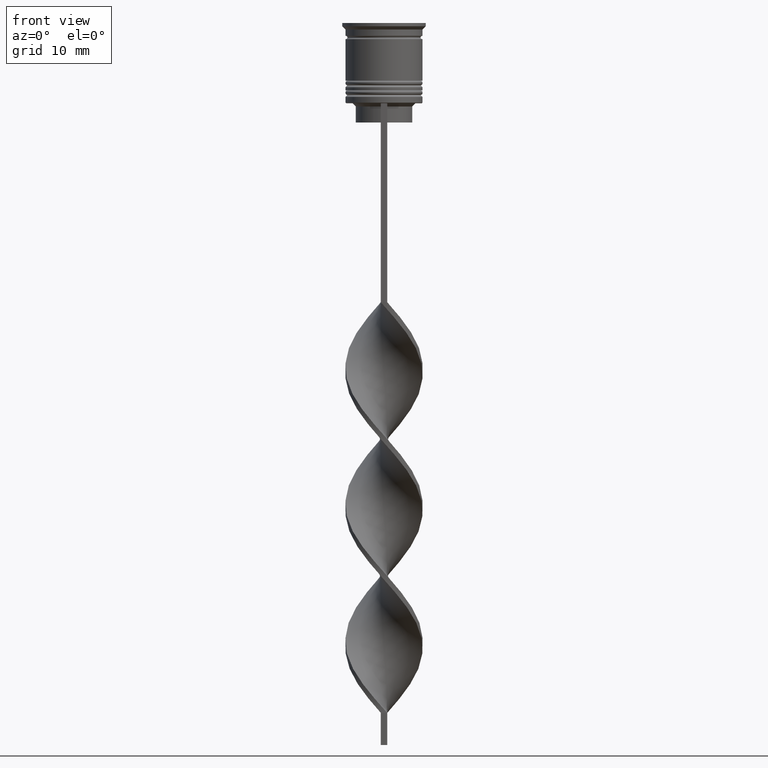
[diagram: clean part render]
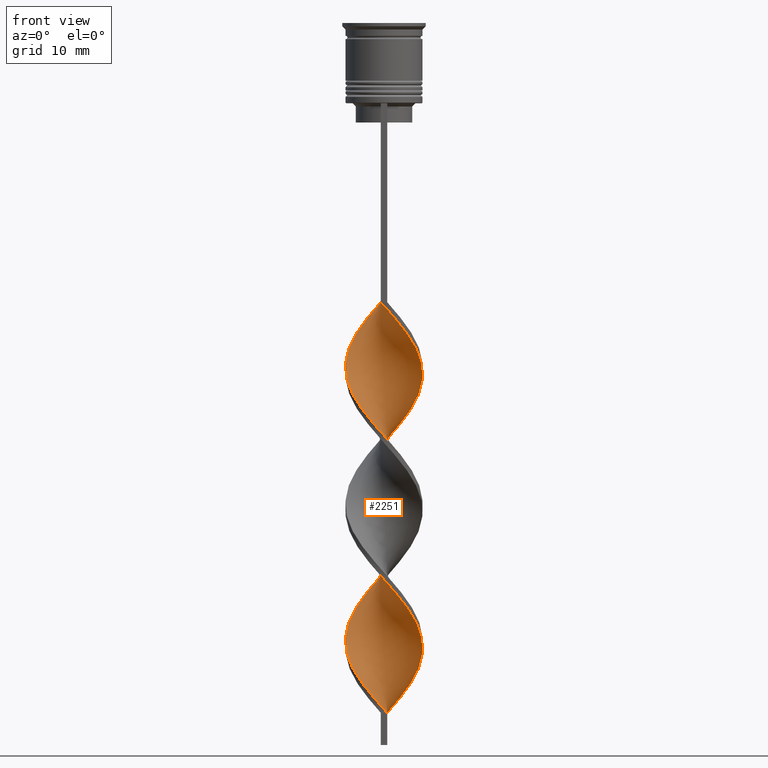
[diagram: same view with one face highlighted and labeled with its STEP entity id]
A machine part, front view. The second image highlights one B-rep face of the part: STEP entity #2251.
In plain terms, the highlighted face is a freeform B-spline surface patch.
Its self-contained STEP definition (entity closure, byte-faithful):
#6 = CARTESIAN_POINT ( 'NONE',  ( 0.2285318993335668514, 6.060710991611130360, -85.34615384615385381 ) ) ;
#7 = CARTESIAN_POINT ( 'NONE',  ( 4.190053366537511259, 4.384962638200768481, -80.42307692307691980 ) ) ;
#47 = CARTESIAN_POINT ( 'NONE',  ( 0.5000000000000005551, 6.000000000000000000, -64.83333333333332860 ) ) ;
#55 = CARTESIAN_POINT ( 'NONE',  ( -5.117688277455211932, 3.254798188466756947, -72.21794871794871540 ) ) ;
#59 = LINE ( 'NONE', #3367, #1224 ) ;
#67 = CARTESIAN_POINT ( 'NONE',  ( 0.5000000000000005551, 6.000000000000000000, -107.5000000000000000 ) ) ;
#73 = CARTESIAN_POINT ( 'NONE',  ( -3.018907784180934417, 5.260288998093236579, -68.93589743589743080 ) ) ;
#110 = CARTESIAN_POINT ( 'NONE',  ( 5.988975108237873712, 0.9574036273986640255, -98.47435897435896379 ) ) ;
#126 = CARTESIAN_POINT ( 'NONE',  ( 2.345611019436006028, -5.545097739941144077, -89.44871794871794179 ) ) ;
#144 = CARTESIAN_POINT ( 'NONE',  ( 4.352991323530322809, 4.159503159906207337, -102.5769230769230660 ) ) ;
#157 = CARTESIAN_POINT ( 'NONE',  ( 5.117688277455213708, -3.254798188466753839, -93.55128205128204399 ) ) ;
#176 = CARTESIAN_POINT ( 'NONE',  ( 3.847936200635250881, 4.688051999358552990, -103.3974358974358836 ) ) ;
#184 = ORIENTED_EDGE ( 'NONE', *, *, #2936, .F. ) ;
#201 = CARTESIAN_POINT ( 'NONE',  ( 5.747901747727229171, -1.935476698729089451, -95.19230769230769340 ) ) ;
#218 = CARTESIAN_POINT ( 'NONE',  ( -5.988975108237873712, 0.9574036273986648027, -52.52564102564103621 ) ) ;
#220 = CARTESIAN_POINT ( 'NONE',  ( -6.044068061194097119, -0.5036723384328409825, -54.16666666666666430 ) ) ;
#221 = CARTESIAN_POINT ( 'NONE',  ( 5.747901747727230060, 1.935476698729086786, -77.14102564102563520 ) ) ;
#236 = CARTESIAN_POINT ( 'NONE',  ( 0.5000000000000005551, 6.000000000000000000, -107.5000000000000000 ) ) ;
#238 = CARTESIAN_POINT ( 'NONE',  ( -4.858046446425393405, 3.630954320453865680, -49.24358974358974450 ) ) ;
#240 = CARTESIAN_POINT ( 'NONE',  ( -5.747901747727229171, -1.935476698729088563, -98.47435897435896379 ) ) ;
#255 = CARTESIAN_POINT ( 'NONE',  ( 3.847936200635250437, 4.688051999358552990, -103.3974358974358694 ) ) ;
#257 = CARTESIAN_POINT ( 'NONE',  ( 3.847936200635249548, -4.688051999358554767, -68.93589743589743080 ) ) ;
#258 = CARTESIAN_POINT ( 'NONE',  ( -3.018907784180935749, -5.260288998093234802, -103.3974358974358694 ) ) ;
#273 = CARTESIAN_POINT ( 'NONE',  ( -5.787399899633756561, 1.660121200912507922, -51.70512820512820440 ) ) ;
#274 = CARTESIAN_POINT ( 'NONE',  ( -0.2285318993335660742, -6.060710991611130360, -64.01282051282051100 ) ) ;
#278 = CARTESIAN_POINT ( 'NONE',  ( 5.432795012591220107, -2.595137443597922200, -51.70512820512820440 ) ) ;
#293 = CARTESIAN_POINT ( 'NONE',  ( -5.988975108237873712, 0.9574036273986648027, -95.19230769230769340 ) ) ;
#294 = CARTESIAN_POINT ( 'NONE',  ( 4.653870821996362039, 3.819880413333761826, -79.60256410256410220 ) ) ;
#297 = CARTESIAN_POINT ( 'NONE',  ( 0.2285318993335633819, -6.060710991611129472, -44.32051282051282470 ) ) ;
#307 = EDGE_CURVE ( 'NONE', #2082, #2021, #59, .T. ) ;
#315 = CARTESIAN_POINT ( 'NONE',  ( 3.231067045089216716, 5.080374567897374405, -61.55128205128204399 ) ) ;
#323 = CARTESIAN_POINT ( 'NONE',  ( -5.221935568727517740, -2.996896547440105252, -79.60256410256410220 ) ) ;
#333 =( BOUNDED_CURVE ( )  B_SPLINE_CURVE ( 2, ( #2363, #3474, #966, #2089, #3192, #1086, #790, #238, #2994, #1349, #2500, #3596, #2527, #220, #833, #1070, #3052, #3260, #3580, #3311, #2157, #2464, #2482, #1328, #2723, #274, #1053, #2799, #1389, #488, #3027, #257, #1684, #2739, #1958, #1032, #1644, #1936, #1370, #2208, #2192, #806, #2762, #1606, #544, #2440, #1665, #758, #776, #2780, #2230, #6, #3338, #1878, #3558, #3295, #2177, #1624, #1914, #1107, #3074, #3279, #562, #293, #1415, #523, #1897, #3011, #505, #661, #3359, #1133, #3420, #2564, #2274, #2895, #2000, #640, #895 ),
 .UNSPECIFIED., .F., .T. ) 
 B_SPLINE_CURVE_WITH_KNOTS ( ( 3, 2, 2, 2, 2, 2, 2, 2, 2, 2, 2, 2, 2, 2, 2, 2, 2, 2, 2, 2, 2, 2, 2, 2, 2, 2, 2, 2, 2, 2, 2, 2, 2, 2, 2, 2, 2, 2, 2, 3 ),
 ( 0.000000000000000000, 0.01923076923076923184, 0.03846153846153846367, 0.05769230769230768857, 0.07692307692307692735, 0.09615384615384615918, 0.1153846153846153771, 0.1346153846153846090, 0.1538461538461538547, 0.1730769230769230449, 0.1923076923076923184, 0.2115384615384615363, 0.2307692307692307543, 0.2500000000000000000, 0.2692307692307692180, 0.2884615384615384359, 0.3076923076923077094, 0.3269230769230769273, 0.3461538461538460898, 0.3653846153846153633, 0.3846153846153846367, 0.4038461538461539102, 0.4230769230769230727, 0.4423076923076922906, 0.4615384615384615086, 0.4807692307692307820, 0.5000000000000000000, 0.5192307692307692735, 0.5384615384615384359, 0.5576923076923077094, 0.5769230769230768718, 0.5961538461538461453, 0.6153846153846154188, 0.6346153846153845812, 0.6538461538461538547, 0.6730769230769230171, 0.6923076923076921796, 0.7115384615384615641, 0.7307692307692307265, 0.7500000000000000000 ),
 .UNSPECIFIED. ) 
 CURVE ( )  GEOMETRIC_REPRESENTATION_ITEM ( )  RATIONAL_B_SPLINE_CURVE ( ( 1.000000000000000000, 0.9927088740980539727, 1.000000000000000000, 0.9927088740980539727, 1.000000000000000000, 0.9927088740980539727, 1.000000000000000000, 0.9927088740980539727, 1.000000000000000000, 0.9927088740980539727, 1.000000000000000000, 0.9927088740980539727, 1.000000000000000000, 0.9927088740980539727, 1.000000000000000000, 0.9927088740980539727, 1.000000000000000000, 0.9927088740980539727, 1.000000000000000000, 0.9927088740980539727, 1.000000000000000000, 0.9927088740980539727, 1.000000000000000000, 0.9927088740980539727, 1.000000000000000000, 0.9927088740980539727, 1.000000000000000000, 0.9927088740980539727, 1.000000000000000000, 0.9927088740980539727, 1.000000000000000000, 0.9927088740980539727, 1.000000000000000000, 0.9927088740980539727, 1.000000000000000000, 0.9927088740980539727, 1.000000000000000000, 0.9927088740980539727, 1.000000000000000000, 0.9927088740980539727, 1.000000000000000000, 0.9927088740980539727, 1.000000000000000000, 0.9927088740980539727, 1.000000000000000000, 0.9927088740980539727, 1.000000000000000000, 0.9927088740980539727, 1.000000000000000000, 0.9927088740980539727, 1.000000000000000000, 0.9927088740980539727, 1.000000000000000000, 0.9927088740980539727, 1.000000000000000000, 0.9927088740980539727, 1.000000000000000000, 0.9927088740980539727, 1.000000000000000000, 0.9927088740980539727, 1.000000000000000000, 0.9927088740980539727, 1.000000000000000000, 0.9927088740980539727, 1.000000000000000000, 0.9927088740980539727, 1.000000000000000000, 0.9927088740980539727, 1.000000000000000000, 0.9927088740980539727, 1.000000000000000000, 0.9927088740980539727, 1.000000000000000000, 0.9927088740980539727, 1.000000000000000000, 0.9927088740980539727, 1.000000000000000000, 0.9927088740980539727, 1.000000000000000000 ) ) 
 REPRESENTATION_ITEM ( '' )  );
#334 = CARTESIAN_POINT ( 'NONE',  ( 0.2285318993335633819, -6.060710991611130360, -44.32051282051282470 ) ) ;
#340 = CARTESIAN_POINT ( 'NONE',  ( 6.016521584715985860, 0.2268656444829105501, -54.98717948717948190 ) ) ;
#398 = CARTESIAN_POINT ( 'NONE',  ( -1.921364894438377657, -5.705993072412531397, -84.52564102564103621 ) ) ;
#414 = CARTESIAN_POINT ( 'NONE',  ( -5.787399899633756561, -1.660121200912506367, -77.96153846153845279 ) ) ;
#426 = CARTESIAN_POINT ( 'NONE',  ( -0.4999999999999997780, -6.000000000000000000, -43.50000000000000000 ) ) ;
#431 = CARTESIAN_POINT ( 'NONE',  ( -1.228531899333566768, -5.939289008388869640, -85.34615384615385381 ) ) ;
#444 = CARTESIAN_POINT ( 'NONE',  ( 3.018907784180934417, -5.260288998093235691, -90.26923076923077360 ) ) ;
#466 = CARTESIAN_POINT ( 'NONE',  ( -4.858046446425393405, 3.630954320453865680, -49.24358974358973740 ) ) ;
#486 = CARTESIAN_POINT ( 'NONE',  ( -4.352991323530321033, 4.159503159906209113, -48.42307692307691269 ) ) ;
#488 = CARTESIAN_POINT ( 'NONE',  ( 2.614197889543179887, -5.472697136436198484, -67.29487179487178139 ) ) ;
#503 = CARTESIAN_POINT ( 'NONE',  ( 1.921364894438370330, -5.705993072412534062, -66.47435897435896379 ) ) ;
#505 = CARTESIAN_POINT ( 'NONE',  ( -5.432795012591221884, -2.595137443597919980, -99.29487179487178139 ) ) ;
#506 = CARTESIAN_POINT ( 'NONE',  ( -4.653870821996361151, -3.819880413333762714, -100.9358974358974308 ) ) ;
#514 = ORIENTED_EDGE ( 'NONE', *, *, #3180, .F. ) ;
#522 = CARTESIAN_POINT ( 'NONE',  ( -1.921364894438377657, -5.705993072412531397, -84.52564102564103621 ) ) ;
#523 = CARTESIAN_POINT ( 'NONE',  ( -6.044068061194097119, -0.5036723384328409825, -96.83333333333332860 ) ) ;
#525 = CARTESIAN_POINT ( 'NONE',  ( 4.858046446425391629, -3.630954320453867012, -70.57692307692306599 ) ) ;
#543 = CARTESIAN_POINT ( 'NONE',  ( -5.221935568727515964, 2.996896547440107916, -50.06410256410256210 ) ) ;
#544 = CARTESIAN_POINT ( 'NONE',  ( 4.653870821996362039, 3.819880413333761826, -79.60256410256410220 ) ) ;
#545 = CARTESIAN_POINT ( 'NONE',  ( -0.9504230770123229810, -5.945308736700090968, -105.8589743589743506 ) ) ;
#547 = CARTESIAN_POINT ( 'NONE',  ( -0.4999999999999997780, -6.000000000000000000, -43.50000000000000000 ) ) ;
#562 = CARTESIAN_POINT ( 'NONE',  ( -5.787399899633756561, 1.660121200912507922, -94.37179487179486159 ) ) ;
#563 = CARTESIAN_POINT ( 'NONE',  ( 0.9504230770123263117, 5.945308736700090968, -84.52564102564103621 ) ) ;
#577 = CARTESIAN_POINT ( 'NONE',  ( 1.921364894438374549, 5.705993072412533174, -63.19230769230768630 ) ) ;
#587 = CARTESIAN_POINT ( 'NONE',  ( 2.614197889543183884, 5.472697136436196708, -62.37179487179486870 ) ) ;
#613 = CARTESIAN_POINT ( 'NONE',  ( 4.352991323530322809, 4.159503159906207337, -59.91025641025640880 ) ) ;
#629 = CARTESIAN_POINT ( 'NONE',  ( -5.747901747727229171, 1.935476698729089007, -73.85897435897436480 ) ) ;
#632 = CARTESIAN_POINT ( 'NONE',  ( 0.4999999999999990563, -6.000000000000000000, -107.5000000000000000 ) ) ;
#640 = CARTESIAN_POINT ( 'NONE',  ( -0.2285318993335660742, -6.060710991611130360, -106.6794871794871824 ) ) ;
#645 = ORIENTED_EDGE ( 'NONE', *, *, #307, .T. ) ;
#654 = CARTESIAN_POINT ( 'NONE',  ( 5.221935568727516852, 2.996896547440106140, -100.9358974358974308 ) ) ;
#661 = CARTESIAN_POINT ( 'NONE',  ( -5.117688277455213708, -3.254798188466752951, -100.1153846153846132 ) ) ;
#670 = CARTESIAN_POINT ( 'NONE',  ( 4.190053366537506818, -4.384962638200773810, -91.91025641025643722 ) ) ;
#683 = CARTESIAN_POINT ( 'NONE',  ( 4.858046446425394294, 3.630954320453863016, -101.7564102564102484 ) ) ;
#698 = CARTESIAN_POINT ( 'NONE',  ( -5.221935568727517740, -2.996896547440105252, -79.60256410256410220 ) ) ;
#716 = CARTESIAN_POINT ( 'NONE',  ( -0.9504230770123187622, 5.945308736700090968, -66.47435897435896379 ) ) ;
#738 = CARTESIAN_POINT ( 'NONE',  ( -2.614197889543184328, -5.472697136436196708, -83.70512820512820440 ) ) ;
#754 = CARTESIAN_POINT ( 'NONE',  ( 2.614197889543183884, 5.472697136436196708, -105.0384615384615330 ) ) ;
#758 = CARTESIAN_POINT ( 'NONE',  ( 3.018907784180935749, 5.260288998093234802, -82.06410256410255499 ) ) ;
#774 = CARTESIAN_POINT ( 'NONE',  ( 1.228531899333561661, -5.939289008388869640, -65.65384615384614619 ) ) ;
#776 = CARTESIAN_POINT ( 'NONE',  ( 2.345611019436010469, 5.545097739941142301, -82.88461538461537259 ) ) ;
#777 = CARTESIAN_POINT ( 'NONE',  ( -3.847936200635249993, 4.688051999358553878, -90.26923076923075939 ) ) ;
#789 = CARTESIAN_POINT ( 'NONE',  ( 2.345611019436006028, -5.545097739941144077, -89.44871794871794179 ) ) ;
#790 = CARTESIAN_POINT ( 'NONE',  ( -4.352991323530321033, 4.159503159906209113, -48.42307692307691269 ) ) ;
#791 = CARTESIAN_POINT ( 'NONE',  ( 5.585824691029638522, -2.362838774426352373, -72.21794871794871540 ) ) ;
#805 = CARTESIAN_POINT ( 'NONE',  ( -2.614197889543182107, 5.472697136436197596, -45.96153846153845279 ) ) ;
#806 = CARTESIAN_POINT ( 'NONE',  ( 5.747901747727230060, 1.935476698729086786, -77.14102564102563520 ) ) ;
#808 = CARTESIAN_POINT ( 'NONE',  ( -6.044068061194097119, -0.5036723384328408715, -96.83333333333332860 ) ) ;
#833 = CARTESIAN_POINT ( 'NONE',  ( -5.895984904460662257, -1.219574518580964106, -54.98717948717948190 ) ) ;
#834 = CARTESIAN_POINT ( 'NONE',  ( 0.4999999999999990563, -6.000000000000000000, -107.5000000000000000 ) ) ;
#848 = CARTESIAN_POINT ( 'NONE',  ( 4.858046446425394294, 3.630954320453863016, -59.08974358974358410 ) ) ;
#856 = CARTESIAN_POINT ( 'NONE',  ( -4.653870821996360263, 3.819880413333763158, -71.39743589743588359 ) ) ;
#876 = CARTESIAN_POINT ( 'NONE',  ( 3.231067045089216716, 5.080374567897374405, -61.55128205128204399 ) ) ;
#890 = CARTESIAN_POINT ( 'NONE',  ( 5.117688277455213708, -3.254798188466753839, -50.88461538461537970 ) ) ;
#895 = CARTESIAN_POINT ( 'NONE',  ( 0.4999999999999990563, -6.000000000000000000, -107.5000000000000000 ) ) ;
#898 = CARTESIAN_POINT ( 'NONE',  ( -0.9504230770123187622, 5.945308736700090968, -66.47435897435896379 ) ) ;
#907 = CARTESIAN_POINT ( 'NONE',  ( 5.895984904460662257, -1.219574518580966105, -53.34615384615383959 ) ) ;
#937 = CARTESIAN_POINT ( 'NONE',  ( 6.044068061194097119, -0.5036723384328415376, -96.83333333333332860 ) ) ;
#956 = CARTESIAN_POINT ( 'NONE',  ( 6.016521584715985860, 0.2268656444829105501, -97.65384615384614619 ) ) ;
#966 = CARTESIAN_POINT ( 'NONE',  ( -1.921364894438372328, 5.705993072412534062, -45.14102564102563520 ) ) ;
#970 = CARTESIAN_POINT ( 'NONE',  ( -5.117688277455211932, 3.254798188466756503, -72.21794871794871540 ) ) ;
#988 = CARTESIAN_POINT ( 'NONE',  ( -2.614197889543184328, -5.472697136436196708, -83.70512820512820440 ) ) ;
#1013 = CARTESIAN_POINT ( 'NONE',  ( 4.190053366537506818, -4.384962638200772922, -91.91025641025643722 ) ) ;
#1015 = CARTESIAN_POINT ( 'NONE',  ( 0.4999999999999990563, -6.000000000000000000, -107.5000000000000000 ) ) ;
#1030 = CARTESIAN_POINT ( 'NONE',  ( -6.016521584715985860, 0.2268656444829126040, -53.34615384615383959 ) ) ;
#1032 = CARTESIAN_POINT ( 'NONE',  ( 5.585824691029637634, -2.362838774426352373, -72.21794871794871540 ) ) ;
#1033 = CARTESIAN_POINT ( 'NONE',  ( 1.672314254691080748, 5.829906481789052464, -83.70512820512820440 ) ) ;
#1049 = CARTESIAN_POINT ( 'NONE',  ( -0.9504230770123229810, -5.945308736700090968, -63.19230769230768630 ) ) ;
#1053 = CARTESIAN_POINT ( 'NONE',  ( 0.4999999999999990563, -6.000000000000000000, -64.83333333333332860 ) ) ;
#1054 = CARTESIAN_POINT ( 'NONE',  ( -2.345611019436007361, -5.545097739941143189, -104.2179487179487012 ) ) ;
#1068 = CARTESIAN_POINT ( 'NONE',  ( 1.921364894438374549, 5.705993072412533174, -105.8589743589743506 ) ) ;
#1070 = CARTESIAN_POINT ( 'NONE',  ( -5.747901747727229171, -1.935476698729088785, -55.80769230769230660 ) ) ;
#1071 = CARTESIAN_POINT ( 'NONE',  ( 5.117688277455216372, 3.254798188466750730, -78.78205128205127039 ) ) ;
#1085 = CARTESIAN_POINT ( 'NONE',  ( -1.672314254691080304, -5.829906481789052464, -62.37179487179486870 ) ) ;
#1086 = CARTESIAN_POINT ( 'NONE',  ( -3.847936200635249993, 4.688051999358553878, -47.60256410256409509 ) ) ;
#1087 = CARTESIAN_POINT ( 'NONE',  ( 2.345611019436010469, 5.545097739941142301, -82.88461538461537259 ) ) ;
#1107 = CARTESIAN_POINT ( 'NONE',  ( -4.858046446425393405, 3.630954320453865680, -91.91025641025643722 ) ) ;
#1112 = CARTESIAN_POINT ( 'NONE',  ( 3.604480575359220396, -4.822625818147004750, -48.42307692307691269 ) ) ;
#1133 = CARTESIAN_POINT ( 'NONE',  ( -4.190053366537507706, -4.384962638200771146, -101.7564102564102484 ) ) ;
#1136 = CARTESIAN_POINT ( 'NONE',  ( -6.016521584715984972, -0.2268656444829071639, -76.32051282051281760 ) ) ;
#1147 = CARTESIAN_POINT ( 'NONE',  ( -0.2285318993335620774, 6.060710991611130360, -65.65384615384614619 ) ) ;
#1155 = CARTESIAN_POINT ( 'NONE',  ( -4.858046446425396070, -3.630954320453860351, -80.42307692307691980 ) ) ;
#1171 = CARTESIAN_POINT ( 'NONE',  ( 4.858046446425394294, 3.630954320453863016, -59.08974358974359120 ) ) ;
#1201 = CARTESIAN_POINT ( 'NONE',  ( 6.044068061194097119, -0.5036723384328415376, -54.16666666666666430 ) ) ;
#1224 = VECTOR ( 'NONE', #3604, 1000.000000000000000 ) ;
#1232 = CARTESIAN_POINT ( 'NONE',  ( 5.787399899633756561, 1.660121200912505479, -99.29487179487178139 ) ) ;
#1263 = CARTESIAN_POINT ( 'NONE',  ( 0.2285318993335633819, -6.060710991611130360, -86.98717948717948900 ) ) ;
#1283 = CARTESIAN_POINT ( 'NONE',  ( 1.921364894438374549, 5.705993072412533174, -105.8589743589743506 ) ) ;
#1309 = CARTESIAN_POINT ( 'NONE',  ( 5.221935568727516852, 2.996896547440106140, -100.9358974358974308 ) ) ;
#1326 = CARTESIAN_POINT ( 'NONE',  ( -3.018907784180935749, -5.260288998093234802, -60.73076923076922640 ) ) ;
#1328 = CARTESIAN_POINT ( 'NONE',  ( -1.672314254691080082, -5.829906481789052464, -62.37179487179486870 ) ) ;
#1329 = CARTESIAN_POINT ( 'NONE',  ( -2.614197889543182107, 5.472697136436197596, -88.62820512820513841 ) ) ;
#1346 = CARTESIAN_POINT ( 'NONE',  ( 5.787399899633756561, 1.660121200912505479, -99.29487179487178139 ) ) ;
#1349 = CARTESIAN_POINT ( 'NONE',  ( -5.585824691029639411, 2.362838774426349264, -50.88461538461537970 ) ) ;
#1350 = CARTESIAN_POINT ( 'NONE',  ( -5.117688277455213708, -3.254798188466752951, -100.1153846153846274 ) ) ;
#1368 = CARTESIAN_POINT ( 'NONE',  ( -4.653870821996361151, -3.819880413333762714, -58.26923076923076650 ) ) ;
#1370 = CARTESIAN_POINT ( 'NONE',  ( 6.016521584715985860, -0.2268656444829146579, -74.67948717948718240 ) ) ;
#1373 = FACE_OUTER_BOUND ( 'NONE', #2733, .T. ) ;
#1387 = CARTESIAN_POINT ( 'NONE',  ( -5.747901747727229171, -1.935476698729088563, -55.80769230769230660 ) ) ;
#1389 = CARTESIAN_POINT ( 'NONE',  ( 1.921364894438370330, -5.705993072412534062, -66.47435897435896379 ) ) ;
#1390 = CARTESIAN_POINT ( 'NONE',  ( -5.895984904460662257, -1.219574518580964106, -97.65384615384614619 ) ) ;
#1393 = CARTESIAN_POINT ( 'NONE',  ( 5.895984904460662257, -1.219574518580966105, -53.34615384615383959 ) ) ;
#1409 = CARTESIAN_POINT ( 'NONE',  ( 5.988975108237873712, 0.9574036273986640255, -55.80769230769230660 ) ) ;
#1415 = CARTESIAN_POINT ( 'NONE',  ( -6.016521584715985860, 0.2268656444829126040, -96.01282051282051100 ) ) ;
#1420 = CARTESIAN_POINT ( 'NONE',  ( 0.9504230770123207606, -5.945308736700090968, -45.14102564102563520 ) ) ;
#1444 = CARTESIAN_POINT ( 'NONE',  ( 1.921364894438374549, 5.705993072412533174, -63.19230769230768630 ) ) ;
#1462 = CARTESIAN_POINT ( 'NONE',  ( 5.221935568727516852, 2.996896547440106140, -58.26923076923076650 ) ) ;
#1488 = CARTESIAN_POINT ( 'NONE',  ( 5.747901747727229171, -1.935476698729089451, -52.52564102564102910 ) ) ;
#1496 = VERTEX_POINT ( 'NONE', #67 ) ;
#1516 = CARTESIAN_POINT ( 'NONE',  ( -3.231067045089219825, -5.080374567897373517, -82.88461538461537259 ) ) ;
#1531 = CARTESIAN_POINT ( 'NONE',  ( 4.653870821996360263, -3.819880413333763158, -92.73076923076922640 ) ) ;
#1548 = CARTESIAN_POINT ( 'NONE',  ( -5.988975108237874601, -0.9574036273986618051, -77.14102564102563520 ) ) ;
#1561 = CARTESIAN_POINT ( 'NONE',  ( 3.604480575359220396, -4.822625818147004750, -91.08974358974359120 ) ) ;
#1586 = CARTESIAN_POINT ( 'NONE',  ( -3.231067045089219825, -5.080374567897373517, -82.88461538461537259 ) ) ;
#1604 = CARTESIAN_POINT ( 'NONE',  ( 5.117688277455213708, -3.254798188466753839, -93.55128205128204399 ) ) ;
#1606 = CARTESIAN_POINT ( 'NONE',  ( 5.117688277455216372, 3.254798188466750286, -78.78205128205127039 ) ) ;
#1622 = CARTESIAN_POINT ( 'NONE',  ( 5.585824691029640299, 2.362838774426348376, -100.1153846153846274 ) ) ;
#1624 = CARTESIAN_POINT ( 'NONE',  ( -3.847936200635249993, 4.688051999358553878, -90.26923076923077360 ) ) ;
#1627 = CARTESIAN_POINT ( 'NONE',  ( 5.117688277455213708, -3.254798188466753839, -50.88461538461538680 ) ) ;
#1642 = CARTESIAN_POINT ( 'NONE',  ( 5.432795012591220107, -2.595137443597922200, -94.37179487179486159 ) ) ;
#1644 = CARTESIAN_POINT ( 'NONE',  ( 5.787399899633756561, -1.660121200912508366, -73.03846153846153300 ) ) ;
#1663 = CARTESIAN_POINT ( 'NONE',  ( -5.585824691029640299, 2.362838774426349264, -50.88461538461538680 ) ) ;
#1665 = CARTESIAN_POINT ( 'NONE',  ( 3.604480575359223060, 4.822625818147002086, -81.24358974358973740 ) ) ;
#1668 = CARTESIAN_POINT ( 'NONE',  ( 4.653870821996360263, -3.819880413333763158, -50.06410256410256210 ) ) ;
#1684 = CARTESIAN_POINT ( 'NONE',  ( 4.352991323530320145, -4.159503159906210001, -69.75641025641024839 ) ) ;
#1685 = CARTESIAN_POINT ( 'NONE',  ( 3.018907784180936194, 5.260288998093234802, -82.06410256410255499 ) ) ;
#1697 = CARTESIAN_POINT ( 'NONE',  ( 4.653870821996360263, -3.819880413333763158, -50.06410256410256210 ) ) ;
#1708 = CARTESIAN_POINT ( 'NONE',  ( -6.044068061194097119, 0.5036723384328423148, -75.49999999999998579 ) ) ;
#1728 = CARTESIAN_POINT ( 'NONE',  ( 5.787399899633756561, 1.660121200912505479, -56.62820512820513130 ) ) ;
#1730 = CARTESIAN_POINT ( 'NONE',  ( 0.4999999999999995559, -2.000000000000000000, -107.5000000000000000 ) ) ;
#1744 = CARTESIAN_POINT ( 'NONE',  ( -5.895984904460662257, 1.219574518580968325, -74.67948717948718240 ) ) ;
#1791 = CARTESIAN_POINT ( 'NONE',  ( -3.018907784180933973, 5.260288998093236579, -68.93589743589743080 ) ) ;
#1807 = CARTESIAN_POINT ( 'NONE',  ( -1.672314254691075641, 5.829906481789053352, -67.29487179487178139 ) ) ;
#1823 = CARTESIAN_POINT ( 'NONE',  ( -4.190053366537505042, 4.384962638200774698, -70.57692307692306599 ) ) ;
#1838 = CARTESIAN_POINT ( 'NONE',  ( -5.585824691029640299, -2.362838774426345712, -78.78205128205127039 ) ) ;
#1858 = CARTESIAN_POINT ( 'NONE',  ( 6.016521584715985860, 0.2268656444829105501, -97.65384615384614619 ) ) ;
#1876 = CARTESIAN_POINT ( 'NONE',  ( -5.117688277455213708, -3.254798188466752951, -57.44871794871794890 ) ) ;
#1878 = CARTESIAN_POINT ( 'NONE',  ( -1.228531899333562993, 5.939289008388869640, -86.98717948717948900 ) ) ;
#1895 = CARTESIAN_POINT ( 'NONE',  ( 2.614197889543179887, -5.472697136436198484, -67.29487179487178139 ) ) ;
#1897 = CARTESIAN_POINT ( 'NONE',  ( -5.895984904460662257, -1.219574518580964106, -97.65384615384614619 ) ) ;
#1899 = CARTESIAN_POINT ( 'NONE',  ( -6.016521584715985860, 0.2268656444829126040, -96.01282051282051100 ) ) ;
#1901 = CARTESIAN_POINT ( 'NONE',  ( 4.190053366537506818, -4.384962638200772922, -49.24358974358973740 ) ) ;
#1913 = CARTESIAN_POINT ( 'NONE',  ( -3.847936200635249993, 4.688051999358553878, -47.60256410256408799 ) ) ;
#1914 = CARTESIAN_POINT ( 'NONE',  ( -4.352991323530321033, 4.159503159906209113, -91.08974358974359120 ) ) ;
#1915 = CARTESIAN_POINT ( 'NONE',  ( 3.604480575359223060, 4.822625818147002086, -81.24358974358973740 ) ) ;
#1934 = CARTESIAN_POINT ( 'NONE',  ( -1.228531899333566990, -5.939289008388869640, -85.34615384615383959 ) ) ;
#1936 = CARTESIAN_POINT ( 'NONE',  ( 5.988975108237873712, -0.9574036273986642476, -73.85897435897436480 ) ) ;
#1958 = CARTESIAN_POINT ( 'NONE',  ( 5.221935568727515964, -2.996896547440107916, -71.39743589743588359 ) ) ;
#1959 = CARTESIAN_POINT ( 'NONE',  ( -3.231067045089215384, 5.080374567897375293, -89.44871794871794179 ) ) ;
#1973 = CARTESIAN_POINT ( 'NONE',  ( 3.847936200635250881, 4.688051999358552990, -60.73076923076922640 ) ) ;
#1981 = CARTESIAN_POINT ( 'NONE',  ( -5.787399899633756561, -1.660121200912506367, -77.96153846153845279 ) ) ;
#2000 = CARTESIAN_POINT ( 'NONE',  ( -0.9504230770123229810, -5.945308736700090968, -105.8589743589743506 ) ) ;
#2006 = CARTESIAN_POINT ( 'NONE',  ( -1.672314254691075641, 5.829906481789053352, -67.29487179487178139 ) ) ;
#2018 = CARTESIAN_POINT ( 'NONE',  ( -0.4999999999999997780, -6.000000000000000000, -43.50000000000000000 ) ) ;
#2021 = VERTEX_POINT ( 'NONE', #2347 ) ;
#2026 = CARTESIAN_POINT ( 'NONE',  ( -5.432795012591220107, 2.595137443597922644, -73.03846153846153300 ) ) ;
#2035 = CARTESIAN_POINT ( 'NONE',  ( 6.016521584715985860, 0.2268656444829105501, -54.98717948717948190 ) ) ;
#2049 = CARTESIAN_POINT ( 'NONE',  ( 3.231067045089216716, 5.080374567897374405, -104.2179487179487012 ) ) ;
#2082 = VERTEX_POINT ( 'NONE', #426 ) ;
#2089 = CARTESIAN_POINT ( 'NONE',  ( -2.614197889543182107, 5.472697136436197596, -45.96153846153845990 ) ) ;
#2094 = CARTESIAN_POINT ( 'NONE',  ( 5.585824691029639411, 2.362838774426348376, -100.1153846153846132 ) ) ;
#2113 = CARTESIAN_POINT ( 'NONE',  ( -4.653870821996360263, 3.819880413333763158, -71.39743589743588359 ) ) ;
#2139 = CARTESIAN_POINT ( 'NONE',  ( 3.231067045089216716, 5.080374567897374405, -104.2179487179487012 ) ) ;
#2155 = CARTESIAN_POINT ( 'NONE',  ( -1.921364894438372328, 5.705993072412534062, -45.14102564102563520 ) ) ;
#2157 = CARTESIAN_POINT ( 'NONE',  ( -3.604480575359222172, -4.822625818147002974, -59.91025641025640880 ) ) ;
#2158 = CARTESIAN_POINT ( 'NONE',  ( -5.221935568727515964, 2.996896547440107916, -92.73076923076922640 ) ) ;
#2174 = CARTESIAN_POINT ( 'NONE',  ( -3.847936200635250881, -4.688051999358552990, -82.06410256410255499 ) ) ;
#2177 = CARTESIAN_POINT ( 'NONE',  ( -3.231067045089215384, 5.080374567897375293, -89.44871794871794179 ) ) ;
#2179 = CARTESIAN_POINT ( 'NONE',  ( 5.432795012591221884, 2.595137443597920868, -77.96153846153845279 ) ) ;
#2181 = CARTESIAN_POINT ( 'NONE',  ( 3.018907784180934861, -5.260288998093235691, -47.60256410256408799 ) ) ;
#2191 = CARTESIAN_POINT ( 'NONE',  ( 0.2285318993335633819, -6.060710991611129472, -86.98717948717948900 ) ) ;
#2192 = CARTESIAN_POINT ( 'NONE',  ( 5.895984904460663145, 1.219574518580960998, -76.32051282051281760 ) ) ;
#2193 = CARTESIAN_POINT ( 'NONE',  ( 5.988975108237873712, -0.9574036273986643586, -73.85897435897436480 ) ) ;
#2207 = CARTESIAN_POINT ( 'NONE',  ( 1.228531899333566102, 5.939289008388869640, -106.6794871794871682 ) ) ;
#2208 = CARTESIAN_POINT ( 'NONE',  ( 6.044068061194097119, 0.5036723384328402053, -75.50000000000000000 ) ) ;
#2209 = CARTESIAN_POINT ( 'NONE',  ( -4.858046446425393405, 3.630954320453865680, -91.91025641025643722 ) ) ;
#2230 = CARTESIAN_POINT ( 'NONE',  ( 0.9504230770123263117, 5.945308736700090968, -84.52564102564103621 ) ) ;
#2231 = CARTESIAN_POINT ( 'NONE',  ( 4.352991323530320145, -4.159503159906210001, -69.75641025641024839 ) ) ;
#2234 = CARTESIAN_POINT ( 'NONE',  ( 5.747901747727229171, -1.935476698729089451, -52.52564102564103621 ) ) ;
#2249 = CARTESIAN_POINT ( 'NONE',  ( 5.221935568727516852, 2.996896547440106140, -58.26923076923076650 ) ) ;
#2251 = ADVANCED_FACE ( 'NONE', ( #1373 ), #2260, .T. ) ;
#2256 = CARTESIAN_POINT ( 'NONE',  ( -5.988975108237873712, -0.9574036273986618051, -77.14102564102563520 ) ) ;
#2260 =( BOUNDED_SURFACE ( )  B_SPLINE_SURFACE ( 1, 2, ( 
 ( #547, #297, #1420, #3014, #3562, #2181, #1112, #1901, #1668, #1627, #278, #2234, #1393, #3363, #340, #2295, #1728, #3097, #1462, #1171, #613, #3407, #876, #587, #1444, #3120, #2568, #2846, #898, #2006, #3134, #73, #3383, #2549, #856, #55, #2026, #629, #1744, #1708, #1136, #2256, #1981, #2828, #323, #1155, #2277, #2174, #1586, #738, #522, #1934, #3009, #2191, #2481, #3293, #789, #2498, #2702, #1013, #2760, #1604, #1642, #201, #2421, #2778, #1858, #3050, #1346, #1622, #1309, #2737, #3538, #255, #2139, #754, #1068, #2207, #236 ),
 ( #2970, #2721, #2155, #805, #3595, #1913, #486, #466, #543, #1663, #273, #218, #1030, #3238, #3026, #1387, #3257, #1876, #1368, #3556, #2992, #1326, #2438, #1085, #1049, #3310, #3277, #774, #503, #1895, #2460, #3577, #2231, #525, #2483, #791, #2764, #2193, #3054, #3075, #3597, #221, #2179, #1071, #294, #7, #1915, #1685, #1087, #1033, #563, #2800, #3340, #3312, #2740, #1329, #1959, #777, #2724, #2209, #2158, #2781, #3261, #3280, #1899, #808, #1390, #240, #2995, #1350, #506, #3296, #2466, #258, #1054, #3581, #545, #3028, #834 ) ),
 .UNSPECIFIED., .F., .F., .F. ) 
 B_SPLINE_SURFACE_WITH_KNOTS ( ( 2, 2 ),
 ( 3, 2, 2, 2, 2, 2, 2, 2, 2, 2, 2, 2, 2, 2, 2, 2, 2, 2, 2, 2, 2, 2, 2, 2, 2, 2, 2, 2, 2, 2, 2, 2, 2, 2, 2, 2, 2, 2, 2, 3 ),
 ( 0.000000000000000000, 1.000000000000000000 ),
 ( 0.000000000000000000, 0.01923076923076923184, 0.03846153846153846367, 0.05769230769230769551, 0.07692307692307692735, 0.09615384615384615918, 0.1153846153846153910, 0.1346153846153846090, 0.1538461538461538547, 0.1730769230769230727, 0.1923076923076923184, 0.2115384615384615363, 0.2307692307692307820, 0.2500000000000000000, 0.2692307692307692180, 0.2884615384615384359, 0.3076923076923077094, 0.3269230769230769273, 0.3461538461538461453, 0.3653846153846153633, 0.3846153846153846367, 0.4038461538461538547, 0.4230769230769230727, 0.4423076923076922906, 0.4615384615384615641, 0.4807692307692307820, 0.5000000000000000000, 0.5192307692307692735, 0.5384615384615384359, 0.5576923076923077094, 0.5769230769230768718, 0.5961538461538461453, 0.6153846153846154188, 0.6346153846153845812, 0.6538461538461538547, 0.6730769230769231282, 0.6923076923076922906, 0.7115384615384615641, 0.7307692307692307265, 0.7500000000000000000 ),
 .UNSPECIFIED. ) 
 GEOMETRIC_REPRESENTATION_ITEM ( )  RATIONAL_B_SPLINE_SURFACE ( (
 ( 1.000000000000000000, 0.9927088740980539727, 1.000000000000000000, 0.9927088740980539727, 1.000000000000000000, 0.9927088740980539727, 1.000000000000000000, 0.9927088740980539727, 1.000000000000000000, 0.9927088740980539727, 1.000000000000000000, 0.9927088740980539727, 1.000000000000000000, 0.9927088740980539727, 1.000000000000000000, 0.9927088740980539727, 1.000000000000000000, 0.9927088740980539727, 1.000000000000000000, 0.9927088740980539727, 1.000000000000000000, 0.9927088740980539727, 1.000000000000000000, 0.9927088740980539727, 1.000000000000000000, 0.9927088740980539727, 1.000000000000000000, 0.9927088740980539727, 1.000000000000000000, 0.9927088740980539727, 1.000000000000000000, 0.9927088740980539727, 1.000000000000000000, 0.9927088740980539727, 1.000000000000000000, 0.9927088740980539727, 1.000000000000000000, 0.9927088740980539727, 1.000000000000000000, 0.9927088740980539727, 1.000000000000000000, 0.9927088740980539727, 1.000000000000000000, 0.9927088740980539727, 1.000000000000000000, 0.9927088740980539727, 1.000000000000000000, 0.9927088740980539727, 1.000000000000000000, 0.9927088740980539727, 1.000000000000000000, 0.9927088740980539727, 1.000000000000000000, 0.9927088740980539727, 1.000000000000000000, 0.9927088740980539727, 1.000000000000000000, 0.9927088740980539727, 1.000000000000000000, 0.9927088740980539727, 1.000000000000000000, 0.9927088740980539727, 1.000000000000000000, 0.9927088740980539727, 1.000000000000000000, 0.9927088740980539727, 1.000000000000000000, 0.9927088740980539727, 1.000000000000000000, 0.9927088740980539727, 1.000000000000000000, 0.9927088740980539727, 1.000000000000000000, 0.9927088740980539727, 1.000000000000000000, 0.9927088740980539727, 1.000000000000000000, 0.9927088740980539727, 1.000000000000000000),
 ( 1.000000000000000000, 0.9927088740980539727, 1.000000000000000000, 0.9927088740980539727, 1.000000000000000000, 0.9927088740980539727, 1.000000000000000000, 0.9927088740980539727, 1.000000000000000000, 0.9927088740980539727, 1.000000000000000000, 0.9927088740980539727, 1.000000000000000000, 0.9927088740980539727, 1.000000000000000000, 0.9927088740980539727, 1.000000000000000000, 0.9927088740980539727, 1.000000000000000000, 0.9927088740980539727, 1.000000000000000000, 0.9927088740980539727, 1.000000000000000000, 0.9927088740980539727, 1.000000000000000000, 0.9927088740980539727, 1.000000000000000000, 0.9927088740980539727, 1.000000000000000000, 0.9927088740980539727, 1.000000000000000000, 0.9927088740980539727, 1.000000000000000000, 0.9927088740980539727, 1.000000000000000000, 0.9927088740980539727, 1.000000000000000000, 0.9927088740980539727, 1.000000000000000000, 0.9927088740980539727, 1.000000000000000000, 0.9927088740980539727, 1.000000000000000000, 0.9927088740980539727, 1.000000000000000000, 0.9927088740980539727, 1.000000000000000000, 0.9927088740980539727, 1.000000000000000000, 0.9927088740980539727, 1.000000000000000000, 0.9927088740980539727, 1.000000000000000000, 0.9927088740980539727, 1.000000000000000000, 0.9927088740980539727, 1.000000000000000000, 0.9927088740980539727, 1.000000000000000000, 0.9927088740980539727, 1.000000000000000000, 0.9927088740980539727, 1.000000000000000000, 0.9927088740980539727, 1.000000000000000000, 0.9927088740980539727, 1.000000000000000000, 0.9927088740980539727, 1.000000000000000000, 0.9927088740980539727, 1.000000000000000000, 0.9927088740980539727, 1.000000000000000000, 0.9927088740980539727, 1.000000000000000000, 0.9927088740980539727, 1.000000000000000000, 0.9927088740980539727, 1.000000000000000000) ) ) 
 REPRESENTATION_ITEM ( '' )  SURFACE ( )  );
#2274 = CARTESIAN_POINT ( 'NONE',  ( -2.345611019436007361, -5.545097739941143189, -104.2179487179487012 ) ) ;
#2277 = CARTESIAN_POINT ( 'NONE',  ( -4.352991323530323697, -4.159503159906206449, -81.24358974358973740 ) ) ;
#2295 = CARTESIAN_POINT ( 'NONE',  ( 5.988975108237873712, 0.9574036273986641365, -55.80769230769230660 ) ) ;
#2317 = CARTESIAN_POINT ( 'NONE',  ( 5.787399899633756561, 1.660121200912505479, -56.62820512820513130 ) ) ;
#2331 = CARTESIAN_POINT ( 'NONE',  ( -5.432795012591220107, 2.595137443597922644, -73.03846153846153300 ) ) ;
#2347 = CARTESIAN_POINT ( 'NONE',  ( -0.4999999999999997780, 6.000000000000000888, -43.50000000000000000 ) ) ;
#2353 = CARTESIAN_POINT ( 'NONE',  ( 2.614197889543183884, 5.472697136436196708, -105.0384615384615188 ) ) ;
#2363 = CARTESIAN_POINT ( 'NONE',  ( -0.4999999999999997780, 6.000000000000000888, -43.50000000000000000 ) ) ;
#2367 = CARTESIAN_POINT ( 'NONE',  ( -6.044068061194097119, 0.5036723384328423148, -75.50000000000000000 ) ) ;
#2378 = CARTESIAN_POINT ( 'NONE',  ( -2.345611019436006028, 5.545097739941144077, -68.11538461538459899 ) ) ;
#2396 = CARTESIAN_POINT ( 'NONE',  ( 0.5000000000000005551, 6.000000000000000000, -107.5000000000000000 ) ) ;
#2421 = CARTESIAN_POINT ( 'NONE',  ( 5.895984904460662257, -1.219574518580966105, -96.01282051282051100 ) ) ;
#2438 = CARTESIAN_POINT ( 'NONE',  ( -2.345611019436007361, -5.545097739941143189, -61.55128205128204399 ) ) ;
#2440 = CARTESIAN_POINT ( 'NONE',  ( 4.190053366537511259, 4.384962638200769369, -80.42307692307691980 ) ) ;
#2460 = CARTESIAN_POINT ( 'NONE',  ( 3.231067045089215384, -5.080374567897375293, -68.11538461538459899 ) ) ;
#2464 = CARTESIAN_POINT ( 'NONE',  ( -3.018907784180935305, -5.260288998093234802, -60.73076923076922640 ) ) ;
#2466 = CARTESIAN_POINT ( 'NONE',  ( -3.604480575359222172, -4.822625818147002974, -102.5769230769230660 ) ) ;
#2481 = CARTESIAN_POINT ( 'NONE',  ( 0.9504230770123207606, -5.945308736700090968, -87.80769230769230660 ) ) ;
#2482 = CARTESIAN_POINT ( 'NONE',  ( -2.345611019436007361, -5.545097739941143189, -61.55128205128204399 ) ) ;
#2483 = CARTESIAN_POINT ( 'NONE',  ( 5.221935568727515964, -2.996896547440107916, -71.39743589743588359 ) ) ;
#2498 = CARTESIAN_POINT ( 'NONE',  ( 3.018907784180934861, -5.260288998093235691, -90.26923076923075939 ) ) ;
#2500 = CARTESIAN_POINT ( 'NONE',  ( -5.787399899633756561, 1.660121200912507922, -51.70512820512820440 ) ) ;
#2521 = CARTESIAN_POINT ( 'NONE',  ( 5.585824691029639411, 2.362838774426348376, -57.44871794871794890 ) ) ;
#2527 = CARTESIAN_POINT ( 'NONE',  ( -6.016521584715985860, 0.2268656444829126040, -53.34615384615383959 ) ) ;
#2543 = CARTESIAN_POINT ( 'NONE',  ( 1.228531899333565880, 5.939289008388869640, -64.01282051282051100 ) ) ;
#2549 = CARTESIAN_POINT ( 'NONE',  ( -4.190053366537505042, 4.384962638200773810, -70.57692307692306599 ) ) ;
#2564 = CARTESIAN_POINT ( 'NONE',  ( -3.018907784180935305, -5.260288998093234802, -103.3974358974358836 ) ) ;
#2568 = CARTESIAN_POINT ( 'NONE',  ( 0.5000000000000005551, 6.000000000000000000, -64.83333333333332860 ) ) ;
#2572 = B_SPLINE_CURVE_WITH_KNOTS ( 'NONE', 3,
 ( #3344, #3387, #1730, #632 ),
 .UNSPECIFIED., .F., .F.,
 ( 4, 4 ),
 ( 0.000000000000000000, 1.000000000000000000 ),
 .UNSPECIFIED. ) ;
#2597 = CARTESIAN_POINT ( 'NONE',  ( 3.018907784180934417, -5.260288998093235691, -47.60256410256409509 ) ) ;
#2623 = CARTESIAN_POINT ( 'NONE',  ( 0.9504230770123207606, -5.945308736700090968, -87.80769230769230660 ) ) ;
#2625 =( BOUNDED_CURVE ( )  B_SPLINE_CURVE ( 2, ( #2018, #334, #3395, #2838, #3416, #2597, #3127, #3355, #1697, #890, #3430, #1488, #907, #1201, #2035, #1409, #2317, #2521, #2249, #848, #3375, #1973, #315, #3088, #577, #2543, #47, #1147, #716, #1807, #2378, #1791, #2890, #1823, #2113, #970, #2331, #2934, #3494, #2367, #3218, #1548, #414, #1838, #698, #3173, #2904, #2916, #1516, #988, #398, #431, #2658, #1263, #2623, #2948, #126, #444, #1561, #670, #1531, #157, #2645, #2671, #3515, #937, #956, #110, #1232, #2094, #654, #683, #144, #176, #2049, #2353, #1283, #3196, #2396 ),
 .UNSPECIFIED., .F., .T. ) 
 B_SPLINE_CURVE_WITH_KNOTS ( ( 3, 2, 2, 2, 2, 2, 2, 2, 2, 2, 2, 2, 2, 2, 2, 2, 2, 2, 2, 2, 2, 2, 2, 2, 2, 2, 2, 2, 2, 2, 2, 2, 2, 2, 2, 2, 2, 2, 2, 3 ),
 ( 0.000000000000000000, 0.01923076923076923184, 0.03846153846153846367, 0.05769230769230768857, 0.07692307692307692735, 0.09615384615384615918, 0.1153846153846153771, 0.1346153846153846090, 0.1538461538461538547, 0.1730769230769230449, 0.1923076923076923184, 0.2115384615384615363, 0.2307692307692307543, 0.2500000000000000000, 0.2692307692307692180, 0.2884615384615384359, 0.3076923076923077094, 0.3269230769230769273, 0.3461538461538460898, 0.3653846153846153633, 0.3846153846153846367, 0.4038461538461539102, 0.4230769230769230727, 0.4423076923076922906, 0.4615384615384615086, 0.4807692307692307820, 0.5000000000000000000, 0.5192307692307692735, 0.5384615384615384359, 0.5576923076923077094, 0.5769230769230768718, 0.5961538461538461453, 0.6153846153846154188, 0.6346153846153845812, 0.6538461538461538547, 0.6730769230769230171, 0.6923076923076921796, 0.7115384615384615641, 0.7307692307692307265, 0.7500000000000000000 ),
 .UNSPECIFIED. ) 
 CURVE ( )  GEOMETRIC_REPRESENTATION_ITEM ( )  RATIONAL_B_SPLINE_CURVE ( ( 1.000000000000000000, 0.9927088740980539727, 1.000000000000000000, 0.9927088740980539727, 1.000000000000000000, 0.9927088740980539727, 1.000000000000000000, 0.9927088740980539727, 1.000000000000000000, 0.9927088740980539727, 1.000000000000000000, 0.9927088740980539727, 1.000000000000000000, 0.9927088740980539727, 1.000000000000000000, 0.9927088740980539727, 1.000000000000000000, 0.9927088740980539727, 1.000000000000000000, 0.9927088740980539727, 1.000000000000000000, 0.9927088740980539727, 1.000000000000000000, 0.9927088740980539727, 1.000000000000000000, 0.9927088740980539727, 1.000000000000000000, 0.9927088740980539727, 1.000000000000000000, 0.9927088740980539727, 1.000000000000000000, 0.9927088740980539727, 1.000000000000000000, 0.9927088740980539727, 1.000000000000000000, 0.9927088740980539727, 1.000000000000000000, 0.9927088740980539727, 1.000000000000000000, 0.9927088740980539727, 1.000000000000000000, 0.9927088740980539727, 1.000000000000000000, 0.9927088740980539727, 1.000000000000000000, 0.9927088740980539727, 1.000000000000000000, 0.9927088740980539727, 1.000000000000000000, 0.9927088740980539727, 1.000000000000000000, 0.9927088740980539727, 1.000000000000000000, 0.9927088740980539727, 1.000000000000000000, 0.9927088740980539727, 1.000000000000000000, 0.9927088740980539727, 1.000000000000000000, 0.9927088740980539727, 1.000000000000000000, 0.9927088740980539727, 1.000000000000000000, 0.9927088740980539727, 1.000000000000000000, 0.9927088740980539727, 1.000000000000000000, 0.9927088740980539727, 1.000000000000000000, 0.9927088740980539727, 1.000000000000000000, 0.9927088740980539727, 1.000000000000000000, 0.9927088740980539727, 1.000000000000000000, 0.9927088740980539727, 1.000000000000000000, 0.9927088740980539727, 1.000000000000000000 ) ) 
 REPRESENTATION_ITEM ( '' )  );
#2645 = CARTESIAN_POINT ( 'NONE',  ( 5.432795012591220107, -2.595137443597922200, -94.37179487179486159 ) ) ;
#2658 = CARTESIAN_POINT ( 'NONE',  ( -0.4999999999999997780, -6.000000000000000000, -86.16666666666667140 ) ) ;
#2671 = CARTESIAN_POINT ( 'NONE',  ( 5.747901747727229171, -1.935476698729089451, -95.19230769230769340 ) ) ;
#2702 = CARTESIAN_POINT ( 'NONE',  ( 3.604480575359220396, -4.822625818147004750, -91.08974358974359120 ) ) ;
#2721 = CARTESIAN_POINT ( 'NONE',  ( -1.228531899333563215, 5.939289008388869640, -44.32051282051282470 ) ) ;
#2723 = CARTESIAN_POINT ( 'NONE',  ( -0.9504230770123229810, -5.945308736700090968, -63.19230769230768630 ) ) ;
#2724 = CARTESIAN_POINT ( 'NONE',  ( -4.352991323530321033, 4.159503159906209113, -91.08974358974359120 ) ) ;
#2733 = EDGE_LOOP ( 'NONE', ( #645, #3352, #514, #184 ) ) ;
#2737 = CARTESIAN_POINT ( 'NONE',  ( 4.858046446425394294, 3.630954320453863016, -101.7564102564102484 ) ) ;
#2739 = CARTESIAN_POINT ( 'NONE',  ( 4.858046446425391629, -3.630954320453867012, -70.57692307692306599 ) ) ;
#2740 = CARTESIAN_POINT ( 'NONE',  ( -1.921364894438372328, 5.705993072412534062, -87.80769230769230660 ) ) ;
#2760 = CARTESIAN_POINT ( 'NONE',  ( 4.653870821996360263, -3.819880413333763158, -92.73076923076922640 ) ) ;
#2762 = CARTESIAN_POINT ( 'NONE',  ( 5.432795012591221884, 2.595137443597920868, -77.96153846153845279 ) ) ;
#2764 = CARTESIAN_POINT ( 'NONE',  ( 5.787399899633756561, -1.660121200912508366, -73.03846153846153300 ) ) ;
#2778 = CARTESIAN_POINT ( 'NONE',  ( 6.044068061194097119, -0.5036723384328415376, -96.83333333333332860 ) ) ;
#2780 = CARTESIAN_POINT ( 'NONE',  ( 1.672314254691080526, 5.829906481789052464, -83.70512820512820440 ) ) ;
#2781 = CARTESIAN_POINT ( 'NONE',  ( -5.585824691029640299, 2.362838774426349264, -93.55128205128204399 ) ) ;
#2799 = CARTESIAN_POINT ( 'NONE',  ( 1.228531899333561661, -5.939289008388869640, -65.65384615384614619 ) ) ;
#2800 = CARTESIAN_POINT ( 'NONE',  ( 0.2285318993335668514, 6.060710991611129472, -85.34615384615383959 ) ) ;
#2828 = CARTESIAN_POINT ( 'NONE',  ( -5.585824691029640299, -2.362838774426346156, -78.78205128205127039 ) ) ;
#2838 = CARTESIAN_POINT ( 'NONE',  ( 1.672314254691077640, -5.829906481789053352, -45.96153846153845990 ) ) ;
#2846 = CARTESIAN_POINT ( 'NONE',  ( -0.2285318993335620774, 6.060710991611129472, -65.65384615384614619 ) ) ;
#2890 = CARTESIAN_POINT ( 'NONE',  ( -3.604480575359219507, 4.822625818147005639, -69.75641025641024839 ) ) ;
#2895 = CARTESIAN_POINT ( 'NONE',  ( -1.672314254691080082, -5.829906481789052464, -105.0384615384615188 ) ) ;
#2904 = CARTESIAN_POINT ( 'NONE',  ( -4.352991323530323697, -4.159503159906206449, -81.24358974358973740 ) ) ;
#2916 = CARTESIAN_POINT ( 'NONE',  ( -3.847936200635251325, -4.688051999358552990, -82.06410256410255499 ) ) ;
#2934 = CARTESIAN_POINT ( 'NONE',  ( -5.747901747727229171, 1.935476698729089229, -73.85897435897436480 ) ) ;
#2936 = EDGE_CURVE ( 'NONE', #2082, #1496, #2625, .T. ) ;
#2948 = CARTESIAN_POINT ( 'NONE',  ( 1.672314254691077640, -5.829906481789053352, -88.62820512820512420 ) ) ;
#2970 = CARTESIAN_POINT ( 'NONE',  ( -0.4999999999999997780, 6.000000000000000000, -43.50000000000000000 ) ) ;
#2992 = CARTESIAN_POINT ( 'NONE',  ( -3.604480575359222172, -4.822625818147002974, -59.91025641025640880 ) ) ;
#2994 = CARTESIAN_POINT ( 'NONE',  ( -5.221935568727515964, 2.996896547440107916, -50.06410256410256210 ) ) ;
#2995 = CARTESIAN_POINT ( 'NONE',  ( -5.432795012591221884, -2.595137443597919980, -99.29487179487178139 ) ) ;
#3009 = CARTESIAN_POINT ( 'NONE',  ( -0.4999999999999997780, -6.000000000000000000, -86.16666666666667140 ) ) ;
#3011 = CARTESIAN_POINT ( 'NONE',  ( -5.747901747727229171, -1.935476698729088785, -98.47435897435896379 ) ) ;
#3014 = CARTESIAN_POINT ( 'NONE',  ( 1.672314254691077862, -5.829906481789053352, -45.96153846153845279 ) ) ;
#3026 = CARTESIAN_POINT ( 'NONE',  ( -5.895984904460662257, -1.219574518580964106, -54.98717948717948190 ) ) ;
#3027 = CARTESIAN_POINT ( 'NONE',  ( 3.231067045089215384, -5.080374567897375293, -68.11538461538459899 ) ) ;
#3028 = CARTESIAN_POINT ( 'NONE',  ( -0.2285318993335660742, -6.060710991611129472, -106.6794871794871682 ) ) ;
#3050 = CARTESIAN_POINT ( 'NONE',  ( 5.988975108237873712, 0.9574036273986641365, -98.47435897435896379 ) ) ;
#3052 = CARTESIAN_POINT ( 'NONE',  ( -5.432795012591221884, -2.595137443597919980, -56.62820512820513130 ) ) ;
#3054 = CARTESIAN_POINT ( 'NONE',  ( 6.016521584715985860, -0.2268656444829146579, -74.67948717948718240 ) ) ;
#3074 = CARTESIAN_POINT ( 'NONE',  ( -5.221935568727515964, 2.996896547440107916, -92.73076923076922640 ) ) ;
#3075 = CARTESIAN_POINT ( 'NONE',  ( 6.044068061194097119, 0.5036723384328400943, -75.49999999999998579 ) ) ;
#3088 = CARTESIAN_POINT ( 'NONE',  ( 2.614197889543183884, 5.472697136436196708, -62.37179487179486870 ) ) ;
#3097 = CARTESIAN_POINT ( 'NONE',  ( 5.585824691029640299, 2.362838774426348376, -57.44871794871794890 ) ) ;
#3120 = CARTESIAN_POINT ( 'NONE',  ( 1.228531899333566102, 5.939289008388869640, -64.01282051282051100 ) ) ;
#3127 = CARTESIAN_POINT ( 'NONE',  ( 3.604480575359220396, -4.822625818147004750, -48.42307692307691269 ) ) ;
#3134 = CARTESIAN_POINT ( 'NONE',  ( -2.345611019436006028, 5.545097739941144077, -68.11538461538459899 ) ) ;
#3173 = CARTESIAN_POINT ( 'NONE',  ( -4.858046446425396070, -3.630954320453860351, -80.42307692307691980 ) ) ;
#3180 = EDGE_CURVE ( 'NONE', #1496, #3433, #2572, .T. ) ;
#3192 = CARTESIAN_POINT ( 'NONE',  ( -3.231067045089215384, 5.080374567897375293, -46.78205128205127750 ) ) ;
#3196 = CARTESIAN_POINT ( 'NONE',  ( 1.228531899333565880, 5.939289008388869640, -106.6794871794871824 ) ) ;
#3218 = CARTESIAN_POINT ( 'NONE',  ( -6.016521584715984972, -0.2268656444829071639, -76.32051282051281760 ) ) ;
#3238 = CARTESIAN_POINT ( 'NONE',  ( -6.044068061194097119, -0.5036723384328408715, -54.16666666666665719 ) ) ;
#3257 = CARTESIAN_POINT ( 'NONE',  ( -5.432795012591221884, -2.595137443597919980, -56.62820512820513130 ) ) ;
#3260 = CARTESIAN_POINT ( 'NONE',  ( -5.117688277455213708, -3.254798188466752951, -57.44871794871794890 ) ) ;
#3261 = CARTESIAN_POINT ( 'NONE',  ( -5.787399899633756561, 1.660121200912507922, -94.37179487179486159 ) ) ;
#3277 = CARTESIAN_POINT ( 'NONE',  ( 0.4999999999999990563, -6.000000000000000000, -64.83333333333332860 ) ) ;
#3279 = CARTESIAN_POINT ( 'NONE',  ( -5.585824691029639411, 2.362838774426349264, -93.55128205128204399 ) ) ;
#3280 = CARTESIAN_POINT ( 'NONE',  ( -5.988975108237873712, 0.9574036273986648027, -95.19230769230769340 ) ) ;
#3293 = CARTESIAN_POINT ( 'NONE',  ( 1.672314254691077862, -5.829906481789053352, -88.62820512820513841 ) ) ;
#3295 = CARTESIAN_POINT ( 'NONE',  ( -2.614197889543182107, 5.472697136436197596, -88.62820512820512420 ) ) ;
#3296 = CARTESIAN_POINT ( 'NONE',  ( -4.190053366537507706, -4.384962638200770257, -101.7564102564102484 ) ) ;
#3310 = CARTESIAN_POINT ( 'NONE',  ( -0.2285318993335660742, -6.060710991611129472, -64.01282051282051100 ) ) ;
#3311 = CARTESIAN_POINT ( 'NONE',  ( -4.190053366537507706, -4.384962638200771146, -59.08974358974358410 ) ) ;
#3312 = CARTESIAN_POINT ( 'NONE',  ( -1.228531899333563215, 5.939289008388869640, -86.98717948717948900 ) ) ;
#3338 = CARTESIAN_POINT ( 'NONE',  ( -0.4999999999999997780, 6.000000000000000000, -86.16666666666667140 ) ) ;
#3340 = CARTESIAN_POINT ( 'NONE',  ( -0.4999999999999997780, 6.000000000000000000, -86.16666666666667140 ) ) ;
#3344 = CARTESIAN_POINT ( 'NONE',  ( 0.5000000000000005551, 6.000000000000000000, -107.5000000000000000 ) ) ;
#3352 = ORIENTED_EDGE ( 'NONE', *, *, #3504, .T. ) ;
#3355 = CARTESIAN_POINT ( 'NONE',  ( 4.190053366537506818, -4.384962638200773810, -49.24358974358974450 ) ) ;
#3359 = CARTESIAN_POINT ( 'NONE',  ( -4.653870821996361151, -3.819880413333762714, -100.9358974358974308 ) ) ;
#3363 = CARTESIAN_POINT ( 'NONE',  ( 6.044068061194097119, -0.5036723384328415376, -54.16666666666665719 ) ) ;
#3367 = CARTESIAN_POINT ( 'NONE',  ( -0.4999999999999997780, -6.000000000000000000, -43.50000000000000000 ) ) ;
#3375 = CARTESIAN_POINT ( 'NONE',  ( 4.352991323530322809, 4.159503159906207337, -59.91025641025640880 ) ) ;
#3383 = CARTESIAN_POINT ( 'NONE',  ( -3.604480575359219507, 4.822625818147005639, -69.75641025641024839 ) ) ;
#3387 = CARTESIAN_POINT ( 'NONE',  ( 0.5000000000000000000, 2.000000000000000000, -107.5000000000000000 ) ) ;
#3395 = CARTESIAN_POINT ( 'NONE',  ( 0.9504230770123207606, -5.945308736700090968, -45.14102564102563520 ) ) ;
#3407 = CARTESIAN_POINT ( 'NONE',  ( 3.847936200635250437, 4.688051999358552990, -60.73076923076922640 ) ) ;
#3416 = CARTESIAN_POINT ( 'NONE',  ( 2.345611019436006028, -5.545097739941144077, -46.78205128205127750 ) ) ;
#3420 = CARTESIAN_POINT ( 'NONE',  ( -3.604480575359222172, -4.822625818147002974, -102.5769230769230660 ) ) ;
#3430 = CARTESIAN_POINT ( 'NONE',  ( 5.432795012591220107, -2.595137443597922200, -51.70512820512820440 ) ) ;
#3433 = VERTEX_POINT ( 'NONE', #1015 ) ;
#3474 = CARTESIAN_POINT ( 'NONE',  ( -1.228531899333562993, 5.939289008388869640, -44.32051282051282470 ) ) ;
#3494 = CARTESIAN_POINT ( 'NONE',  ( -5.895984904460662257, 1.219574518580968325, -74.67948717948718240 ) ) ;
#3504 = EDGE_CURVE ( 'NONE', #2021, #3433, #333, .T. ) ;
#3515 = CARTESIAN_POINT ( 'NONE',  ( 5.895984904460662257, -1.219574518580966105, -96.01282051282051100 ) ) ;
#3538 = CARTESIAN_POINT ( 'NONE',  ( 4.352991323530322809, 4.159503159906207337, -102.5769230769230660 ) ) ;
#3556 = CARTESIAN_POINT ( 'NONE',  ( -4.190053366537507706, -4.384962638200770257, -59.08974358974359120 ) ) ;
#3558 = CARTESIAN_POINT ( 'NONE',  ( -1.921364894438372328, 5.705993072412534062, -87.80769230769230660 ) ) ;
#3562 = CARTESIAN_POINT ( 'NONE',  ( 2.345611019436006028, -5.545097739941144077, -46.78205128205127750 ) ) ;
#3577 = CARTESIAN_POINT ( 'NONE',  ( 3.847936200635249548, -4.688051999358554767, -68.93589743589743080 ) ) ;
#3580 = CARTESIAN_POINT ( 'NONE',  ( -4.653870821996361151, -3.819880413333762714, -58.26923076923076650 ) ) ;
#3581 = CARTESIAN_POINT ( 'NONE',  ( -1.672314254691080304, -5.829906481789052464, -105.0384615384615330 ) ) ;
#3595 = CARTESIAN_POINT ( 'NONE',  ( -3.231067045089215384, 5.080374567897375293, -46.78205128205127750 ) ) ;
#3596 = CARTESIAN_POINT ( 'NONE',  ( -5.988975108237873712, 0.9574036273986648027, -52.52564102564102910 ) ) ;
#3597 = CARTESIAN_POINT ( 'NONE',  ( 5.895984904460663145, 1.219574518580960998, -76.32051282051281760 ) ) ;
#3604 = DIRECTION ( 'NONE',  ( 0.000000000000000000, 1.000000000000000000, 0.000000000000000000 ) ) ;